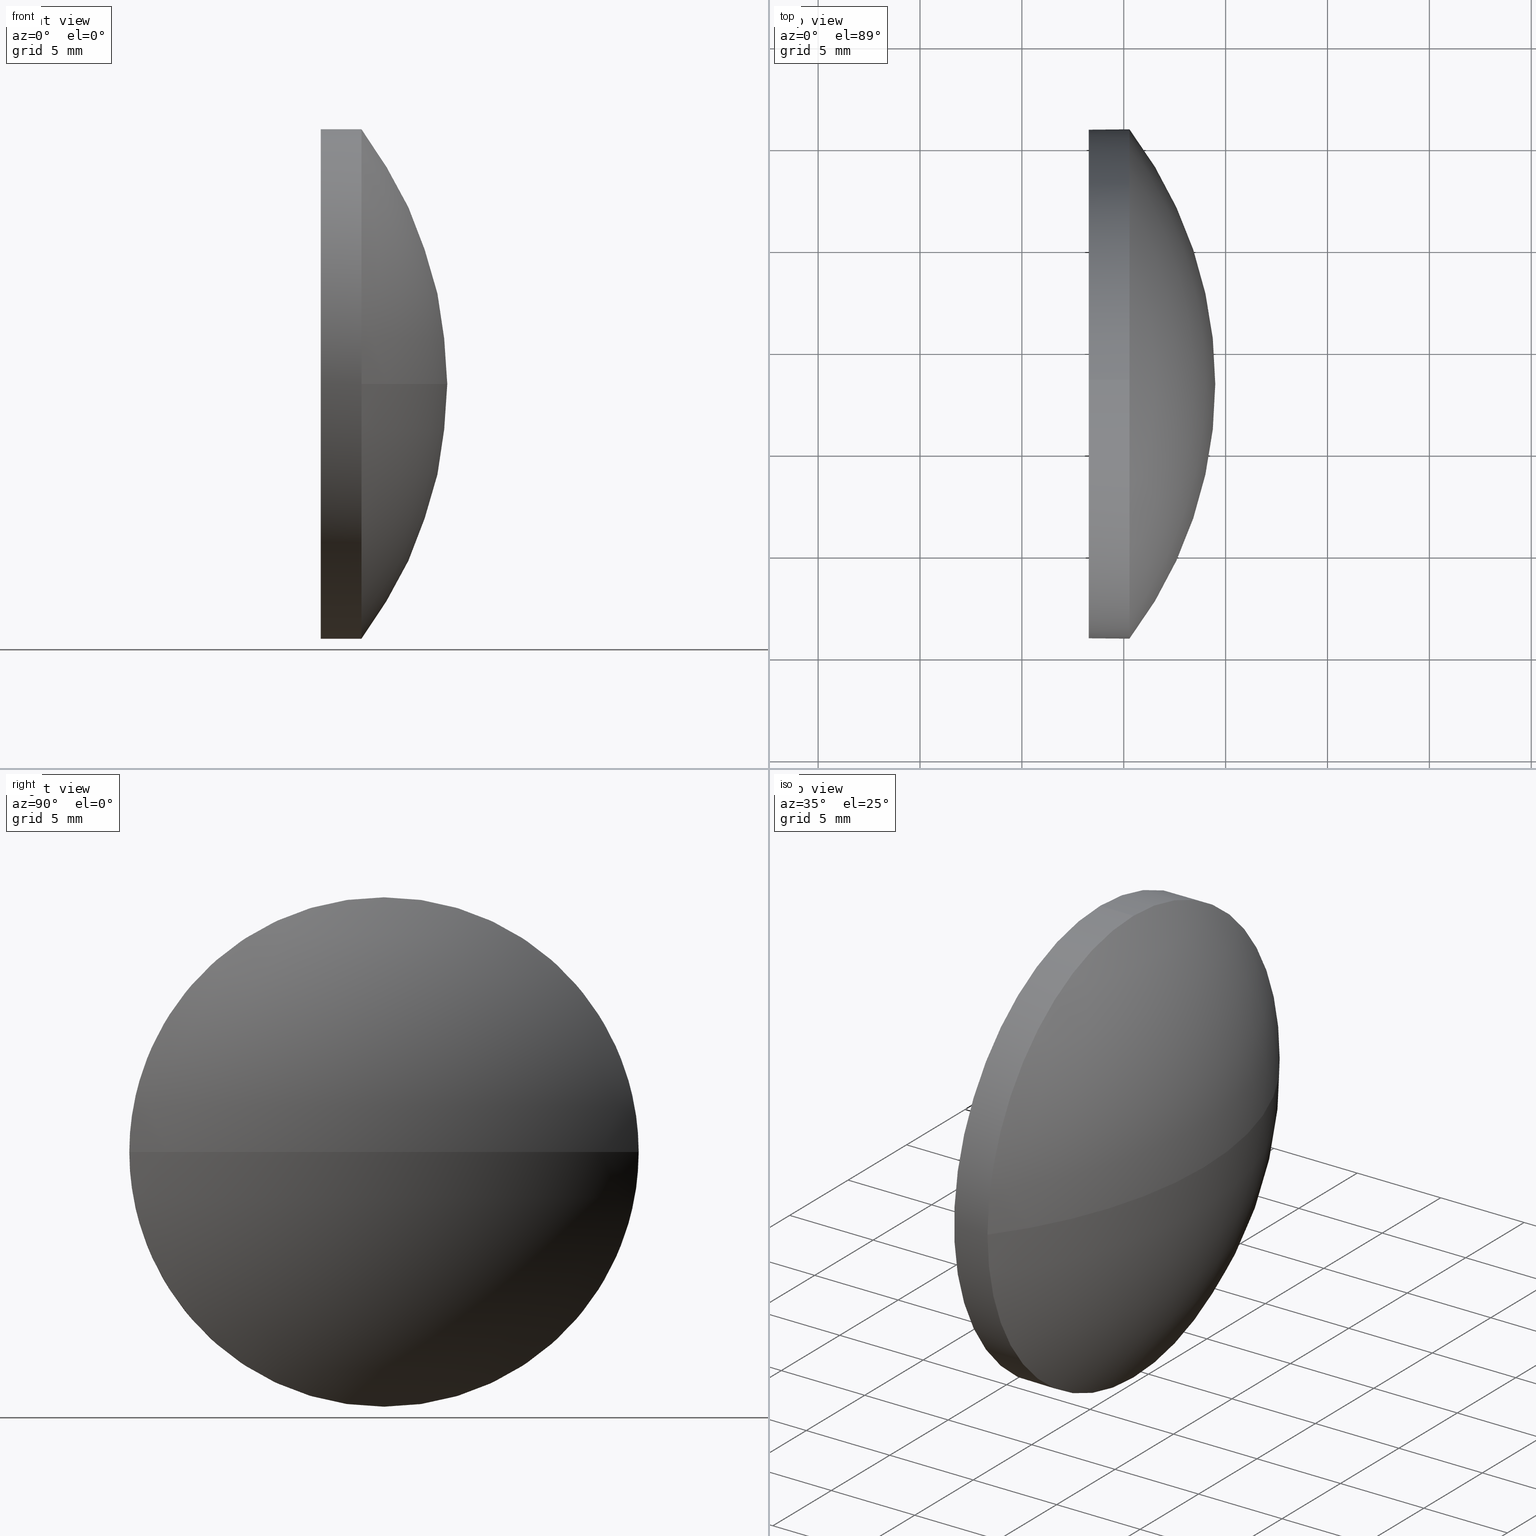
[diagram: canonical four-view strip — front | top / right | iso, engineering-drawing reading convention]
A machine part, canonical four-view strip (front | top / right | iso — engineering-drawing reading convention). The complete STEP part file that produces these views, byte-faithful:
ISO-10303-21;
HEADER;
FILE_DESCRIPTION (( 'STEP AP214' ),
    '1' );
FILE_NAME ('100125.STEP',
    '2019-05-16T03:52:59',
    ( '' ),
    ( '' ),
    'SwSTEP 2.0',
    'SolidWorks 2016',
    '' );
FILE_SCHEMA (( 'AUTOMOTIVE_DESIGN' ));
ENDSEC;

DATA;
#1 = DIRECTION ( 'NONE',  ( 0.0000000000000000000, 1.000000000000000000, 0.0000000000000000000 ) ) ;
#2 = ORIENTED_EDGE ( 'NONE', *, *, #138, .F. ) ;
#3 = EDGE_CURVE ( 'NONE', #55, #159, #17, .T. ) ;
#4 = FACE_OUTER_BOUND ( 'NONE', #145, .T. ) ;
#5 = ORIENTED_EDGE ( 'NONE', *, *, #8, .F. ) ;
#6 = DIRECTION ( 'NONE',  ( 0.0000000000000000000, 0.0000000000000000000, 1.000000000000000000 ) ) ;
#7 = MANIFOLD_SOLID_BREP ( '��ת1', #42 ) ;
#8 = EDGE_CURVE ( 'NONE', #159, #35, #19, .T. ) ;
#9 = DIRECTION ( 'NONE',  ( -0.0000000000000000000, 0.0000000000000000000, 1.000000000000000000 ) ) ;
#10 = DIRECTION ( 'NONE',  ( 0.0000000000000000000, 1.224646799147353200E-016, -1.000000000000000000 ) ) ;
#11 =( LENGTH_UNIT ( ) NAMED_UNIT ( * ) SI_UNIT ( .MILLI., .METRE. ) );
#12 = ORIENTED_EDGE ( 'NONE', *, *, #27, .F. ) ;
#13 = CARTESIAN_POINT ( 'NONE',  ( 575.7766020623414500, 288.3208065953607500, -12.50000000000001100 ) ) ;
#14 = VERTEX_POINT ( 'NONE', #83 ) ;
#15 = UNCERTAINTY_MEASURE_WITH_UNIT (LENGTH_MEASURE( 1.000000000000000100E-005 ), #177, 'distance_accuracy_value', 'NONE');
#16 = AXIS2_PLACEMENT_3D ( 'NONE', #47, #99, #6 ) ;
#17 = CIRCLE ( 'NONE', #116, 12.50000000000001100 ) ;
#18 = SURFACE_STYLE_USAGE ( .BOTH. , #66 ) ;
#19 = CIRCLE ( 'NONE', #16, 12.50000000000001100 ) ;
#20 = ADVANCED_FACE ( 'NONE', ( #59 ), #56, .T. ) ;
#21 = CARTESIAN_POINT ( 'NONE',  ( 563.8295439560237100, 288.3208065953607500, 0.0000000000000000000 ) ) ;
#22 = DIRECTION ( 'NONE',  ( 0.0000000000000000000, 0.0000000000000000000, 1.000000000000000000 ) ) ;
#23 = EDGE_LOOP ( 'NONE', ( #12, #166, #58, #133, #148 ) ) ;
#24 = VECTOR ( 'NONE', #137, 1000.000000000000000 ) ;
#25 =( NAMED_UNIT ( * ) PLANE_ANGLE_UNIT ( ) SI_UNIT ( $, .RADIAN. ) );
#26 = CARTESIAN_POINT ( 'NONE',  ( 580.2815510819143600, 288.3208065953607500, 0.0000000000000000000 ) ) ;
#27 = EDGE_CURVE ( 'NONE', #159, #124, #173, .T. ) ;
#28 = SURFACE_STYLE_FILL_AREA ( #64 ) ;
#29 = CYLINDRICAL_SURFACE ( 'NONE', #134, 12.50000000000001100 ) ;
#30 = ORIENTED_EDGE ( 'NONE', *, *, #60, .F. ) ;
#31 = ORIENTED_EDGE ( 'NONE', *, *, #3, .T. ) ;
#32 = SPHERICAL_SURFACE ( 'NONE', #95, 20.66200712589071000 ) ;
#33 = DIRECTION ( 'NONE',  ( -1.000000000000000000, -0.0000000000000000000, -0.0000000000000000000 ) ) ;
#34 = CARTESIAN_POINT ( 'NONE',  ( 578.2815510819143600, 288.3208065953607500, -12.50000000000001100 ) ) ;
#35 = VERTEX_POINT ( 'NONE', #39 ) ;
#36 = DIRECTION ( 'NONE',  ( 0.0000000000000000000, 1.000000000000000000, 0.0000000000000000000 ) ) ;
#37 = AXIS2_PLACEMENT_3D ( 'NONE', #85, #127, #136 ) ;
#38 = CARTESIAN_POINT ( 'NONE',  ( 578.2815510819143600, 288.3208065953607500, 0.0000000000000000000 ) ) ;
#39 = CARTESIAN_POINT ( 'NONE',  ( 580.2815510819143600, 275.8208065953607500, -1.530808498934194300E-015 ) ) ;
#40 = SURFACE_STYLE_USAGE ( .BOTH. , #143 ) ;
#41 = DIRECTION ( 'NONE',  ( 0.0000000000000000000, 0.0000000000000000000, 1.000000000000000000 ) ) ;
#42 = CLOSED_SHELL ( 'NONE', ( #153, #151, #49, #20, #87 ) ) ;
#43 =( GEOMETRIC_REPRESENTATION_CONTEXT ( 3 ) GLOBAL_UNCERTAINTY_ASSIGNED_CONTEXT ( ( #61 ) ) GLOBAL_UNIT_ASSIGNED_CONTEXT ( ( #11, #25, #158 ) ) REPRESENTATION_CONTEXT ( 'NONE', 'WORKASPACE' ) );
#44 = AXIS2_PLACEMENT_3D ( 'NONE', #156, #67, #164 ) ;
#45 =( NAMED_UNIT ( * ) PLANE_ANGLE_UNIT ( ) SI_UNIT ( $, .RADIAN. ) );
#46 = CARTESIAN_POINT ( 'NONE',  ( 580.2815510819143600, 288.3208065953607500, 0.0000000000000000000 ) ) ;
#47 = CARTESIAN_POINT ( 'NONE',  ( 580.2815510819143600, 288.3208065953607500, 0.0000000000000000000 ) ) ;
#48 = STYLED_ITEM ( 'NONE', ( #175 ), #7 ) ;
#49 = ADVANCED_FACE ( 'NONE', ( #74 ), #172, .T. ) ;
#50 = CARTESIAN_POINT ( 'NONE',  ( 563.8295439560237100, 288.3208065953607500, 0.0000000000000000000 ) ) ;
#51 = CARTESIAN_POINT ( 'NONE',  ( 0.0000000000000000000, 0.0000000000000000000, 0.0000000000000000000 ) ) ;
#52 = PLANE ( 'NONE',  #44 ) ;
#53 =( NAMED_UNIT ( * ) SI_UNIT ( $, .STERADIAN. ) SOLID_ANGLE_UNIT ( ) );
#54 = DIRECTION ( 'NONE',  ( 0.0000000000000000000, 0.0000000000000000000, 1.000000000000000000 ) ) ;
#55 = VERTEX_POINT ( 'NONE', #142 ) ;
#56 = CYLINDRICAL_SURFACE ( 'NONE', #37, 12.50000000000001100 ) ;
#57 = PRESENTATION_LAYER_ASSIGNMENT (  '', '', ( #48 ) ) ;
#58 = ORIENTED_EDGE ( 'NONE', *, *, #125, .T. ) ;
#59 = FACE_OUTER_BOUND ( 'NONE', #23, .T. ) ;
#60 = EDGE_CURVE ( 'NONE', #14, #35, #71, .T. ) ;
#61 = UNCERTAINTY_MEASURE_WITH_UNIT (LENGTH_MEASURE( 1.000000000000000100E-005 ), #11, 'distance_accuracy_value', 'NONE');
#62 = EDGE_LOOP ( 'NONE', ( #110, #103, #5, #86 ) ) ;
#63 = FACE_OUTER_BOUND ( 'NONE', #62, .T. ) ;
#64 = FILL_AREA_STYLE ('',( #178 ) ) ;
#65 = DIRECTION ( 'NONE',  ( -1.000000000000000000, -0.0000000000000000000, -0.0000000000000000000 ) ) ;
#66 = SURFACE_SIDE_STYLE ('',( #28 ) ) ;
#67 = DIRECTION ( 'NONE',  ( 1.000000000000000000, 0.0000000000000000000, 0.0000000000000000000 ) ) ;
#68 = ORIENTED_EDGE ( 'NONE', *, *, #149, .T. ) ;
#69 = AXIS2_PLACEMENT_3D ( 'NONE', #183, #9, #118 ) ;
#70 = APPLICATION_CONTEXT ( 'automotive_design' ) ;
#71 = CIRCLE ( 'NONE', #113, 20.66200712589072500 ) ;
#72 = DIRECTION ( 'NONE',  ( -0.0000000000000000000, 0.0000000000000000000, -1.000000000000000000 ) ) ;
#73 =( LENGTH_UNIT ( ) NAMED_UNIT ( * ) SI_UNIT ( .MILLI., .METRE. ) );
#74 = FACE_OUTER_BOUND ( 'NONE', #79, .T. ) ;
#75 = ORIENTED_EDGE ( 'NONE', *, *, #106, .T. ) ;
#76 = AXIS2_PLACEMENT_3D ( 'NONE', #38, #90, #41 ) ;
#77 = PRODUCT_DEFINITION_SHAPE ( 'NONE', 'NONE',  #132 ) ;
#78 = DIRECTION ( 'NONE',  ( -1.000000000000000000, -0.0000000000000000000, -0.0000000000000000000 ) ) ;
#79 = EDGE_LOOP ( 'NONE', ( #30, #171, #2, #112 ) ) ;
#80 = AXIS2_PLACEMENT_3D ( 'NONE', #51, #91, #105 ) ;
#81 = AXIS2_PLACEMENT_3D ( 'NONE', #21, #89, #36 ) ;
#82 = ADVANCED_BREP_SHAPE_REPRESENTATION ( '100125', ( #7, #80 ), #43 ) ;
#83 = CARTESIAN_POINT ( 'NONE',  ( 584.4915510819143900, 288.3208065953607500, 0.0000000000000000000 ) ) ;
#84 = DIRECTION ( 'NONE',  ( 0.0000000000000000000, 0.0000000000000000000, 1.000000000000000000 ) ) ;
#85 = CARTESIAN_POINT ( 'NONE',  ( 575.7766020623414500, 288.3208065953607500, 0.0000000000000000000 ) ) ;
#86 = ORIENTED_EDGE ( 'NONE', *, *, #3, .F. ) ;
#87 = ADVANCED_FACE ( 'NONE', ( #4 ), #52, .F. ) ;
#88 = MECHANICAL_DESIGN_GEOMETRIC_PRESENTATION_REPRESENTATION (  '', ( #48 ), #96 ) ;
#89 = DIRECTION ( 'NONE',  ( -0.0000000000000000000, 0.0000000000000000000, -1.000000000000000000 ) ) ;
#90 = DIRECTION ( 'NONE',  ( -1.000000000000000000, -0.0000000000000000000, -0.0000000000000000000 ) ) ;
#91 = DIRECTION ( 'NONE',  ( 0.0000000000000000000, 0.0000000000000000000, 1.000000000000000000 ) ) ;
#92 = SHAPE_DEFINITION_REPRESENTATION ( #77, #82 ) ;
#93 = PRESENTATION_LAYER_ASSIGNMENT (  '', '', ( #161 ) ) ;
#94 = SURFACE_STYLE_FILL_AREA ( #120 ) ;
#95 = AXIS2_PLACEMENT_3D ( 'NONE', #157, #72, #1 ) ;
#96 =( GEOMETRIC_REPRESENTATION_CONTEXT ( 3 ) GLOBAL_UNCERTAINTY_ASSIGNED_CONTEXT ( ( #15 ) ) GLOBAL_UNIT_ASSIGNED_CONTEXT ( ( #177, #45, #97 ) ) REPRESENTATION_CONTEXT ( 'NONE', 'WORKASPACE' ) );
#97 =( NAMED_UNIT ( * ) SI_UNIT ( $, .STERADIAN. ) SOLID_ANGLE_UNIT ( ) );
#98 = CARTESIAN_POINT ( 'NONE',  ( 575.7766020623414500, 288.3208065953607500, 12.50000000000001100 ) ) ;
#99 = DIRECTION ( 'NONE',  ( -1.000000000000000000, -0.0000000000000000000, -0.0000000000000000000 ) ) ;
#100 = PRODUCT_DEFINITION_FORMATION_WITH_SPECIFIED_SOURCE ( '�κ�', '', #147, .NOT_KNOWN. ) ;
#101 = COLOUR_RGB ( '',1.000000000000000000, 1.000000000000000000, 1.000000000000000000 ) ;
#102 = APPLICATION_PROTOCOL_DEFINITION ( 'draft international standard', 'automotive_design', 1998, #121 ) ;
#103 = ORIENTED_EDGE ( 'NONE', *, *, #60, .T. ) ;
#104 = DIRECTION ( 'NONE',  ( -1.000000000000000000, -0.0000000000000000000, -0.0000000000000000000 ) ) ;
#105 = DIRECTION ( 'NONE',  ( 1.000000000000000000, 0.0000000000000000000, 0.0000000000000000000 ) ) ;
#106 = EDGE_CURVE ( 'NONE', #124, #122, #176, .T. ) ;
#107 = EDGE_LOOP ( 'NONE', ( #31, #179, #140, #115, #152 ) ) ;
#108 = CIRCLE ( 'NONE', #129, 12.50000000000001100 ) ;
#109 = PRODUCT_RELATED_PRODUCT_CATEGORY ( 'part', '', ( #147 ) ) ;
#110 = ORIENTED_EDGE ( 'NONE', *, *, #160, .F. ) ;
#111 = PRODUCT_DEFINITION_CONTEXT ( 'detailed design', #70, 'design' ) ;
#112 = ORIENTED_EDGE ( 'NONE', *, *, #125, .F. ) ;
#113 = AXIS2_PLACEMENT_3D ( 'NONE', #50, #10, #154 ) ;
#114 = DIRECTION ( 'NONE',  ( 0.0000000000000000000, 0.0000000000000000000, 1.000000000000000000 ) ) ;
#115 = ORIENTED_EDGE ( 'NONE', *, *, #131, .F. ) ;
#116 = AXIS2_PLACEMENT_3D ( 'NONE', #26, #78, #114 ) ;
#117 = DIRECTION ( 'NONE',  ( -1.000000000000000000, -0.0000000000000000000, -0.0000000000000000000 ) ) ;
#118 = DIRECTION ( 'NONE',  ( 1.000000000000000000, 0.0000000000000000000, 0.0000000000000000000 ) ) ;
#119 = LINE ( 'NONE', #98, #24 ) ;
#120 = FILL_AREA_STYLE ('',( #155 ) ) ;
#121 = APPLICATION_CONTEXT ( 'automotive_design' ) ;
#122 = VERTEX_POINT ( 'NONE', #128 ) ;
#123 = AXIS2_PLACEMENT_3D ( 'NONE', #46, #65, #84 ) ;
#124 = VERTEX_POINT ( 'NONE', #34 ) ;
#125 = EDGE_CURVE ( 'NONE', #35, #146, #150, .T. ) ;
#126 = CARTESIAN_POINT ( 'NONE',  ( 578.2815510819143600, 288.3208065953607500, 0.0000000000000000000 ) ) ;
#127 = DIRECTION ( 'NONE',  ( -1.000000000000000000, -0.0000000000000000000, -0.0000000000000000000 ) ) ;
#128 = CARTESIAN_POINT ( 'NONE',  ( 578.2815510819143600, 288.3208065953607500, 12.50000000000001100 ) ) ;
#129 = AXIS2_PLACEMENT_3D ( 'NONE', #139, #184, #22 ) ;
#130 = CARTESIAN_POINT ( 'NONE',  ( 580.2815510819143600, 288.3208065953607500, -12.50000000000001100 ) ) ;
#131 = EDGE_CURVE ( 'NONE', #146, #122, #119, .T. ) ;
#132 = PRODUCT_DEFINITION ( 'δ֪', '', #100, #111 ) ;
#133 = ORIENTED_EDGE ( 'NONE', *, *, #131, .T. ) ;
#134 = AXIS2_PLACEMENT_3D ( 'NONE', #186, #104, #54 ) ;
#135 = CIRCLE ( 'NONE', #69, 20.66200712589072500 ) ;
#136 = DIRECTION ( 'NONE',  ( 0.0000000000000000000, 0.0000000000000000000, 1.000000000000000000 ) ) ;
#137 = DIRECTION ( 'NONE',  ( -1.000000000000000000, -0.0000000000000000000, -0.0000000000000000000 ) ) ;
#138 = EDGE_CURVE ( 'NONE', #146, #55, #108, .T. ) ;
#139 = CARTESIAN_POINT ( 'NONE',  ( 580.2815510819143600, 288.3208065953607500, 0.0000000000000000000 ) ) ;
#140 = ORIENTED_EDGE ( 'NONE', *, *, #149, .F. ) ;
#141 = PRODUCT_CONTEXT ( 'NONE', #121, 'mechanical' ) ;
#142 = CARTESIAN_POINT ( 'NONE',  ( 580.2815510819143600, 300.8208065953607500, 0.0000000000000000000 ) ) ;
#143 = SURFACE_SIDE_STYLE ('',( #94 ) ) ;
#144 = CIRCLE ( 'NONE', #76, 12.50000000000001100 ) ;
#145 = EDGE_LOOP ( 'NONE', ( #68, #75 ) ) ;
#146 = VERTEX_POINT ( 'NONE', #163 ) ;
#147 = PRODUCT ( '100125', '100125', '', ( #141 ) ) ;
#148 = ORIENTED_EDGE ( 'NONE', *, *, #106, .F. ) ;
#149 = EDGE_CURVE ( 'NONE', #122, #124, #144, .T. ) ;
#150 = CIRCLE ( 'NONE', #123, 12.50000000000001100 ) ;
#151 = ADVANCED_FACE ( 'NONE', ( #63 ), #32, .T. ) ;
#152 = ORIENTED_EDGE ( 'NONE', *, *, #138, .T. ) ;
#153 = ADVANCED_FACE ( 'NONE', ( #185 ), #29, .T. ) ;
#154 = DIRECTION ( 'NONE',  ( 0.0000000000000000000, 1.000000000000000000, 1.224646799147352500E-016 ) ) ;
#155 = FILL_AREA_STYLE_COLOUR ( '', #101 ) ;
#156 = CARTESIAN_POINT ( 'NONE',  ( 578.2815510819143600, 288.3208065953607500, 0.0000000000000000000 ) ) ;
#157 = CARTESIAN_POINT ( 'NONE',  ( 563.8295439560237100, 288.3208065953607500, 0.0000000000000000000 ) ) ;
#158 =( NAMED_UNIT ( * ) SI_UNIT ( $, .STERADIAN. ) SOLID_ANGLE_UNIT ( ) );
#159 = VERTEX_POINT ( 'NONE', #130 ) ;
#160 = EDGE_CURVE ( 'NONE', #14, #55, #135, .T. ) ;
#161 = STYLED_ITEM ( 'NONE', ( #169 ), #82 ) ;
#162 = DIRECTION ( 'NONE',  ( 0.0000000000000000000, 0.0000000000000000000, 1.000000000000000000 ) ) ;
#163 = CARTESIAN_POINT ( 'NONE',  ( 580.2815510819143600, 288.3208065953607500, 12.50000000000001100 ) ) ;
#164 = DIRECTION ( 'NONE',  ( 0.0000000000000000000, 0.0000000000000000000, -1.000000000000000000 ) ) ;
#165 = APPLICATION_PROTOCOL_DEFINITION ( 'draft international standard', 'automotive_design', 1998, #70 ) ;
#166 = ORIENTED_EDGE ( 'NONE', *, *, #8, .T. ) ;
#167 =( NAMED_UNIT ( * ) PLANE_ANGLE_UNIT ( ) SI_UNIT ( $, .RADIAN. ) );
#168 = VECTOR ( 'NONE', #117, 1000.000000000000000 ) ;
#169 = PRESENTATION_STYLE_ASSIGNMENT (( #40 ) ) ;
#170 = MECHANICAL_DESIGN_GEOMETRIC_PRESENTATION_REPRESENTATION (  '', ( #161 ), #180 ) ;
#171 = ORIENTED_EDGE ( 'NONE', *, *, #160, .T. ) ;
#172 = SPHERICAL_SURFACE ( 'NONE', #81, 20.66200712589071000 ) ;
#173 = LINE ( 'NONE', #13, #168 ) ;
#174 = AXIS2_PLACEMENT_3D ( 'NONE', #126, #33, #162 ) ;
#175 = PRESENTATION_STYLE_ASSIGNMENT (( #18 ) ) ;
#176 = CIRCLE ( 'NONE', #174, 12.50000000000001100 ) ;
#177 =( LENGTH_UNIT ( ) NAMED_UNIT ( * ) SI_UNIT ( .MILLI., .METRE. ) );
#178 = FILL_AREA_STYLE_COLOUR ( '', #182 ) ;
#179 = ORIENTED_EDGE ( 'NONE', *, *, #27, .T. ) ;
#180 =( GEOMETRIC_REPRESENTATION_CONTEXT ( 3 ) GLOBAL_UNCERTAINTY_ASSIGNED_CONTEXT ( ( #181 ) ) GLOBAL_UNIT_ASSIGNED_CONTEXT ( ( #73, #167, #53 ) ) REPRESENTATION_CONTEXT ( 'NONE', 'WORKASPACE' ) );
#181 = UNCERTAINTY_MEASURE_WITH_UNIT (LENGTH_MEASURE( 1.000000000000000100E-005 ), #73, 'distance_accuracy_value', 'NONE');
#182 = COLOUR_RGB ( '',1.000000000000000000, 1.000000000000000000, 1.000000000000000000 ) ;
#183 = CARTESIAN_POINT ( 'NONE',  ( 563.8295439560237100, 288.3208065953607500, 0.0000000000000000000 ) ) ;
#184 = DIRECTION ( 'NONE',  ( -1.000000000000000000, -0.0000000000000000000, -0.0000000000000000000 ) ) ;
#185 = FACE_OUTER_BOUND ( 'NONE', #107, .T. ) ;
#186 = CARTESIAN_POINT ( 'NONE',  ( 575.7766020623414500, 288.3208065953607500, 0.0000000000000000000 ) ) ;
ENDSEC;
END-ISO-10303-21;
